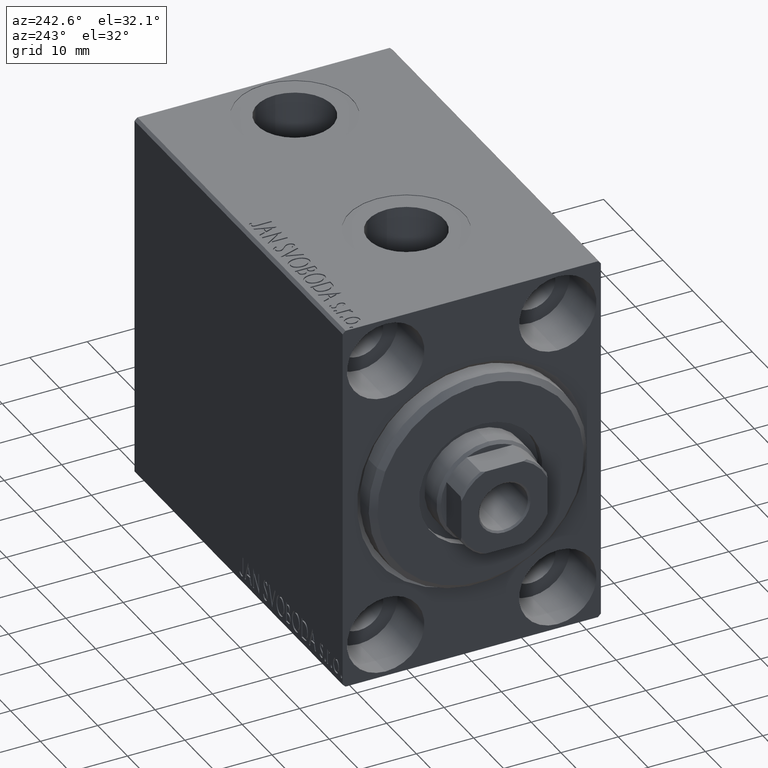
[diagram: clean part render]
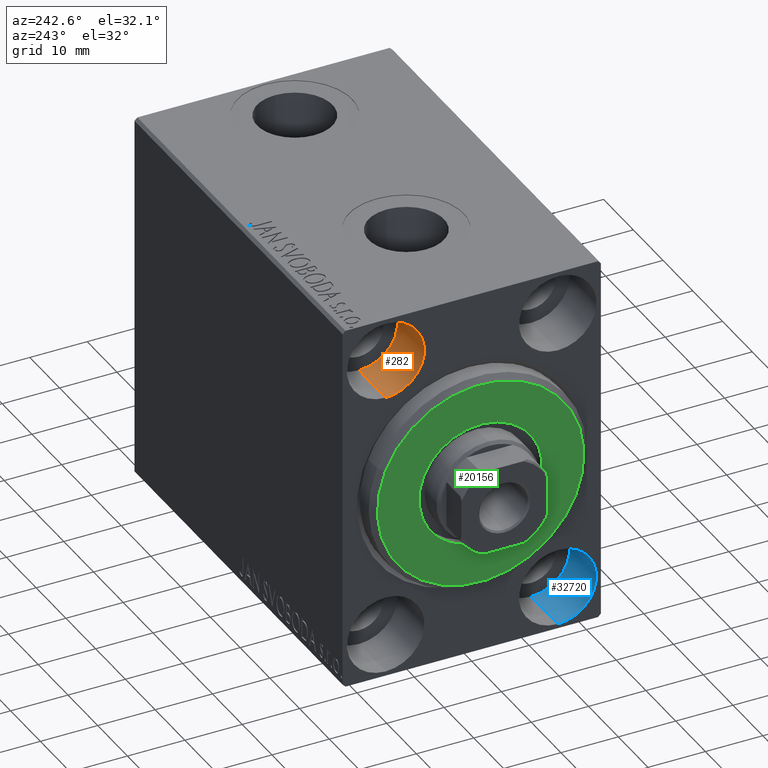
[diagram: same view with three faces highlighted in distinct colors, each labeled with its STEP entity id]
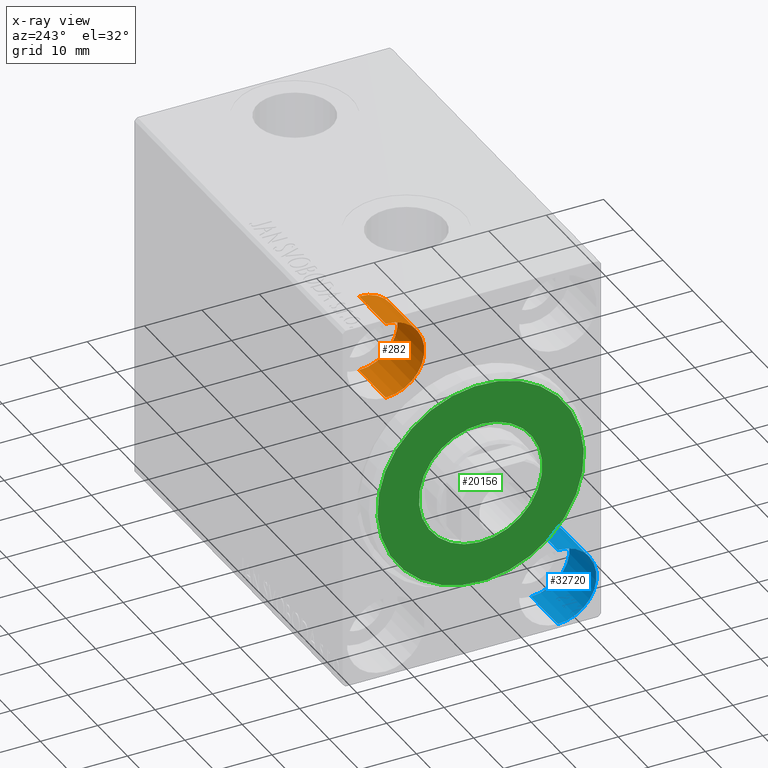
[diagram: x-ray of the same camera — body ghosted, the three highlighted faces saturated]
A machine part, auxiliary view with three faces highlighted in distinct colors.
The next image is the same camera in x-ray (body ghosted, the three faces saturated) — at least one of them is partly hidden behind the body in this view.
Their STEP definitions:

[orange] entity #282 — the highlighted cylindrical surface (partial cylindrical patch) has radius 6.75 mm, axis along (-1, -0, -0).
#260 = ORIENTED_EDGE ( 'NONE', *, *, #26106, .F. ) ;
#282 = ADVANCED_FACE ( 'NONE', ( #34472 ), #24013, .F. ) ;
#1649 = CARTESIAN_POINT ( 'NONE',  ( 0.000000000000000000, 15.00000000000000355, 25.00000000000000000 ) ) ;
#2774 = LINE ( 'NONE', #42835, #7249 ) ;
#3770 = CARTESIAN_POINT ( 'NONE',  ( 9.000000000000000000, 15.00000000000000355, 25.00000000000000000 ) ) ;
#4626 = ORIENTED_EDGE ( 'NONE', *, *, #9369, .T. ) ;
#7249 = VECTOR ( 'NONE', #16346, 1000.000000000000000 ) ;
#9369 = EDGE_CURVE ( 'NONE', #37439, #39309, #2774, .T. ) ;
#10807 = DIRECTION ( 'NONE',  ( -1.000000000000000000, -0.000000000000000000, -0.000000000000000000 ) ) ;
#11427 = VECTOR ( 'NONE', #10807, 1000.000000000000000 ) ;
#11815 = CIRCLE ( 'NONE', #34559, 6.749999999999999112 ) ;
#16346 = DIRECTION ( 'NONE',  ( -1.000000000000000000, -0.000000000000000000, -0.000000000000000000 ) ) ;
#17340 = DIRECTION ( 'NONE',  ( -1.000000000000000000, -0.000000000000000000, -0.000000000000000000 ) ) ;
#18294 = VERTEX_POINT ( 'NONE', #34994 ) ;
#18473 = ORIENTED_EDGE ( 'NONE', *, *, #39277, .F. ) ;
#22936 = DIRECTION ( 'NONE',  ( -1.000000000000000000, 0.000000000000000000, 0.000000000000000000 ) ) ;
#24013 = CYLINDRICAL_SURFACE ( 'NONE', #25641, 6.749999999999999112 ) ;
#24373 = CARTESIAN_POINT ( 'NONE',  ( 0.000000000000000000, 15.00000000000000355, 18.25000000000000355 ) ) ;
#24896 = AXIS2_PLACEMENT_3D ( 'NONE', #1649, #28789, #42573 ) ;
#25641 = AXIS2_PLACEMENT_3D ( 'NONE', #3770, #17340, #30912 ) ;
#26106 = EDGE_CURVE ( 'NONE', #37439, #18294, #11815, .T. ) ;
#28363 = CARTESIAN_POINT ( 'NONE',  ( 9.000000000000000000, 15.00000000000000355, 31.75000000000000000 ) ) ;
#28789 = DIRECTION ( 'NONE',  ( -1.000000000000000000, 0.000000000000000000, 0.000000000000000000 ) ) ;
#29108 = CARTESIAN_POINT ( 'NONE',  ( 9.000000000000000000, 15.00000000000000355, 18.25000000000000355 ) ) ;
#30421 = CARTESIAN_POINT ( 'NONE',  ( 0.000000000000000000, 15.00000000000000355, 31.75000000000000000 ) ) ;
#30912 = DIRECTION ( 'NONE',  ( 0.000000000000000000, 0.000000000000000000, 1.000000000000000000 ) ) ;
#33824 = VERTEX_POINT ( 'NONE', #30421 ) ;
#34472 = FACE_OUTER_BOUND ( 'NONE', #39182, .T. ) ;
#34559 = AXIS2_PLACEMENT_3D ( 'NONE', #39167, #22936, #36067 ) ;
#34994 = CARTESIAN_POINT ( 'NONE',  ( 9.000000000000000000, 15.00000000000000355, 31.75000000000000000 ) ) ;
#36067 = DIRECTION ( 'NONE',  ( 0.000000000000000000, 0.000000000000000000, 1.000000000000000000 ) ) ;
#36957 = CIRCLE ( 'NONE', #24896, 6.749999999999999112 ) ;
#37439 = VERTEX_POINT ( 'NONE', #29108 ) ;
#37934 = LINE ( 'NONE', #28363, #11427 ) ;
#38147 = EDGE_CURVE ( 'NONE', #39309, #33824, #36957, .T. ) ;
#39167 = CARTESIAN_POINT ( 'NONE',  ( 9.000000000000000000, 15.00000000000000355, 25.00000000000000000 ) ) ;
#39182 = EDGE_LOOP ( 'NONE', ( #260, #4626, #42870, #18473 ) ) ;
#39277 = EDGE_CURVE ( 'NONE', #18294, #33824, #37934, .T. ) ;
#39309 = VERTEX_POINT ( 'NONE', #24373 ) ;
#42573 = DIRECTION ( 'NONE',  ( 0.000000000000000000, 0.000000000000000000, 1.000000000000000000 ) ) ;
#42835 = CARTESIAN_POINT ( 'NONE',  ( 9.000000000000000000, 15.00000000000000355, 18.25000000000000355 ) ) ;
#42870 = ORIENTED_EDGE ( 'NONE', *, *, #38147, .T. ) ;

[blue] entity #32720 — the highlighted cylindrical surface (partial cylindrical patch) has radius 6.75 mm, axis along (-1, -0, -0).
#1079 = CYLINDRICAL_SURFACE ( 'NONE', #25462, 6.749999999999999112 ) ;
#1611 = VERTEX_POINT ( 'NONE', #43377 ) ;
#2211 = CARTESIAN_POINT ( 'NONE',  ( 9.000000000000000000, -15.00000000000000355, -18.25000000000000355 ) ) ;
#3530 = EDGE_LOOP ( 'NONE', ( #43735, #43664, #20390, #32136 ) ) ;
#6645 = CARTESIAN_POINT ( 'NONE',  ( 9.000000000000000000, -15.00000000000000355, -31.75000000000000000 ) ) ;
#7602 = CARTESIAN_POINT ( 'NONE',  ( 0.000000000000000000, -15.00000000000000355, -25.00000000000000000 ) ) ;
#7645 = DIRECTION ( 'NONE',  ( 0.000000000000000000, 0.000000000000000000, 1.000000000000000000 ) ) ;
#7858 = DIRECTION ( 'NONE',  ( -1.000000000000000000, 0.000000000000000000, 0.000000000000000000 ) ) ;
#8223 = AXIS2_PLACEMENT_3D ( 'NONE', #7602, #12258, #29372 ) ;
#10034 = AXIS2_PLACEMENT_3D ( 'NONE', #24551, #7858, #7645 ) ;
#12258 = DIRECTION ( 'NONE',  ( -1.000000000000000000, 0.000000000000000000, 0.000000000000000000 ) ) ;
#13826 = VECTOR ( 'NONE', #20216, 1000.000000000000000 ) ;
#15559 = CARTESIAN_POINT ( 'NONE',  ( 0.000000000000000000, -15.00000000000000355, -18.25000000000000355 ) ) ;
#17473 = EDGE_CURVE ( 'NONE', #1611, #30902, #22506, .T. ) ;
#20216 = DIRECTION ( 'NONE',  ( -1.000000000000000000, -0.000000000000000000, -0.000000000000000000 ) ) ;
#20390 = ORIENTED_EDGE ( 'NONE', *, *, #21205, .T. ) ;
#21205 = EDGE_CURVE ( 'NONE', #30902, #31959, #27415, .T. ) ;
#22506 = LINE ( 'NONE', #6645, #13826 ) ;
#24019 = EDGE_CURVE ( 'NONE', #27386, #31959, #26788, .T. ) ;
#24551 = CARTESIAN_POINT ( 'NONE',  ( 9.000000000000000000, -15.00000000000000355, -25.00000000000000000 ) ) ;
#25462 = AXIS2_PLACEMENT_3D ( 'NONE', #37801, #38017, #34466 ) ;
#26566 = CARTESIAN_POINT ( 'NONE',  ( 9.000000000000000000, -15.00000000000000355, -18.25000000000000355 ) ) ;
#26788 = LINE ( 'NONE', #26566, #35194 ) ;
#27386 = VERTEX_POINT ( 'NONE', #2211 ) ;
#27415 = CIRCLE ( 'NONE', #8223, 6.749999999999999112 ) ;
#29372 = DIRECTION ( 'NONE',  ( 0.000000000000000000, 0.000000000000000000, 1.000000000000000000 ) ) ;
#30632 = CIRCLE ( 'NONE', #10034, 6.749999999999999112 ) ;
#30902 = VERTEX_POINT ( 'NONE', #40217 ) ;
#30904 = FACE_OUTER_BOUND ( 'NONE', #3530, .T. ) ;
#31959 = VERTEX_POINT ( 'NONE', #15559 ) ;
#32136 = ORIENTED_EDGE ( 'NONE', *, *, #24019, .F. ) ;
#32720 = ADVANCED_FACE ( 'NONE', ( #30904 ), #1079, .F. ) ;
#34466 = DIRECTION ( 'NONE',  ( 0.000000000000000000, 0.000000000000000000, 1.000000000000000000 ) ) ;
#35194 = VECTOR ( 'NONE', #40770, 1000.000000000000000 ) ;
#37801 = CARTESIAN_POINT ( 'NONE',  ( 9.000000000000000000, -15.00000000000000355, -25.00000000000000000 ) ) ;
#38017 = DIRECTION ( 'NONE',  ( -1.000000000000000000, -0.000000000000000000, -0.000000000000000000 ) ) ;
#40217 = CARTESIAN_POINT ( 'NONE',  ( 0.000000000000000000, -15.00000000000000355, -31.75000000000000000 ) ) ;
#40654 = EDGE_CURVE ( 'NONE', #1611, #27386, #30632, .T. ) ;
#40770 = DIRECTION ( 'NONE',  ( -1.000000000000000000, -0.000000000000000000, -0.000000000000000000 ) ) ;
#43377 = CARTESIAN_POINT ( 'NONE',  ( 9.000000000000000000, -15.00000000000000355, -31.75000000000000000 ) ) ;
#43664 = ORIENTED_EDGE ( 'NONE', *, *, #17473, .T. ) ;
#43735 = ORIENTED_EDGE ( 'NONE', *, *, #40654, .F. ) ;

[green] entity #20156 — the highlighted planar face has unit normal (-1, 0, 0).
#208 = DIRECTION ( 'NONE',  ( 1.000000000000000000, -0.000000000000000000, 0.000000000000000000 ) ) ;
#1531 = ORIENTED_EDGE ( 'NONE', *, *, #22573, .T. ) ;
#2923 = FACE_OUTER_BOUND ( 'NONE', #26851, .T. ) ;
#3150 = DIRECTION ( 'NONE',  ( 0.000000000000000000, 0.000000000000000000, -1.000000000000000000 ) ) ;
#3583 = DIRECTION ( 'NONE',  ( 1.000000000000000000, -0.000000000000000000, 0.000000000000000000 ) ) ;
#5779 = ORIENTED_EDGE ( 'NONE', *, *, #28314, .T. ) ;
#7252 = EDGE_LOOP ( 'NONE', ( #5779, #15074 ) ) ;
#7525 = CARTESIAN_POINT ( 'NONE',  ( 3.000000000000000000, 1.316495309083404223E-15, -10.75000000000000000 ) ) ;
#7757 = DIRECTION ( 'NONE',  ( -1.000000000000000000, 0.000000000000000000, -0.000000000000000000 ) ) ;
#7977 = CARTESIAN_POINT ( 'NONE',  ( 3.000000000000000000, 0.000000000000000000, 0.000000000000000000 ) ) ;
#11682 = CIRCLE ( 'NONE', #24494, 17.99999999999999645 ) ;
#11841 = CARTESIAN_POINT ( 'NONE',  ( 3.000000000000000000, 2.265596578422603002E-15, -17.99999999999999645 ) ) ;
#13652 = CARTESIAN_POINT ( 'NONE',  ( 3.000000000000000000, 0.000000000000000000, 0.000000000000000000 ) ) ;
#14037 = DIRECTION ( 'NONE',  ( -1.000000000000000000, 0.000000000000000000, -0.000000000000000000 ) ) ;
#14152 = VERTEX_POINT ( 'NONE', #25013 ) ;
#15074 = ORIENTED_EDGE ( 'NONE', *, *, #24477, .T. ) ;
#15954 = VERTEX_POINT ( 'NONE', #7525 ) ;
#16756 = DIRECTION ( 'NONE',  ( 1.000000000000000000, -0.000000000000000000, 0.000000000000000000 ) ) ;
#17294 = EDGE_CURVE ( 'NONE', #31746, #14152, #11682, .T. ) ;
#20156 = ADVANCED_FACE ( 'NONE', ( #2923, #40736 ), #34065, .T. ) ;
#20643 = ORIENTED_EDGE ( 'NONE', *, *, #17294, .T. ) ;
#22553 = CARTESIAN_POINT ( 'NONE',  ( 3.000000000000000000, 0.000000000000000000, 10.75000000000000000 ) ) ;
#22573 = EDGE_CURVE ( 'NONE', #14152, #31746, #33116, .T. ) ;
#23584 = DIRECTION ( 'NONE',  ( 0.000000000000000000, 0.000000000000000000, -1.000000000000000000 ) ) ;
#23618 = CARTESIAN_POINT ( 'NONE',  ( 3.000000000000000000, 0.000000000000000000, 0.000000000000000000 ) ) ;
#24477 = EDGE_CURVE ( 'NONE', #15954, #42470, #33815, .T. ) ;
#24494 = AXIS2_PLACEMENT_3D ( 'NONE', #13652, #16756, #33653 ) ;
#25013 = CARTESIAN_POINT ( 'NONE',  ( 3.000000000000000000, 0.000000000000000000, 17.99999999999999645 ) ) ;
#26851 = EDGE_LOOP ( 'NONE', ( #1531, #20643 ) ) ;
#28314 = EDGE_CURVE ( 'NONE', #42470, #15954, #29627, .T. ) ;
#29627 = CIRCLE ( 'NONE', #31745, 10.75000000000000000 ) ;
#30265 = AXIS2_PLACEMENT_3D ( 'NONE', #31371, #14037, #41388 ) ;
#31371 = CARTESIAN_POINT ( 'NONE',  ( 3.000000000000000000, 0.000000000000000000, 0.000000000000000000 ) ) ;
#31745 = AXIS2_PLACEMENT_3D ( 'NONE', #7977, #7757, #35764 ) ;
#31746 = VERTEX_POINT ( 'NONE', #11841 ) ;
#33116 = CIRCLE ( 'NONE', #38798, 17.99999999999999645 ) ;
#33653 = DIRECTION ( 'NONE',  ( 0.000000000000000000, 0.000000000000000000, -1.000000000000000000 ) ) ;
#33815 = CIRCLE ( 'NONE', #30265, 10.75000000000000000 ) ;
#33818 = AXIS2_PLACEMENT_3D ( 'NONE', #23618, #3583, #3150 ) ;
#34065 = PLANE ( 'NONE',  #33818 ) ;
#35764 = DIRECTION ( 'NONE',  ( 0.000000000000000000, 0.000000000000000000, -1.000000000000000000 ) ) ;
#38798 = AXIS2_PLACEMENT_3D ( 'NONE', #41369, #208, #23584 ) ;
#40736 = FACE_BOUND ( 'NONE', #7252, .T. ) ;
#41369 = CARTESIAN_POINT ( 'NONE',  ( 3.000000000000000000, 0.000000000000000000, 0.000000000000000000 ) ) ;
#41388 = DIRECTION ( 'NONE',  ( 0.000000000000000000, 0.000000000000000000, -1.000000000000000000 ) ) ;
#42470 = VERTEX_POINT ( 'NONE', #22553 ) ;